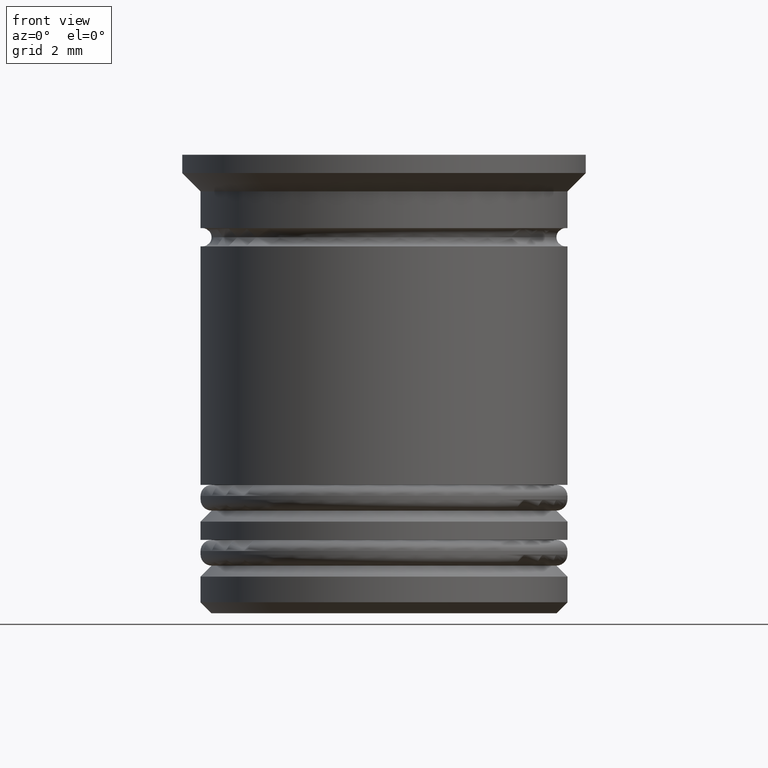
[diagram: clean part render]
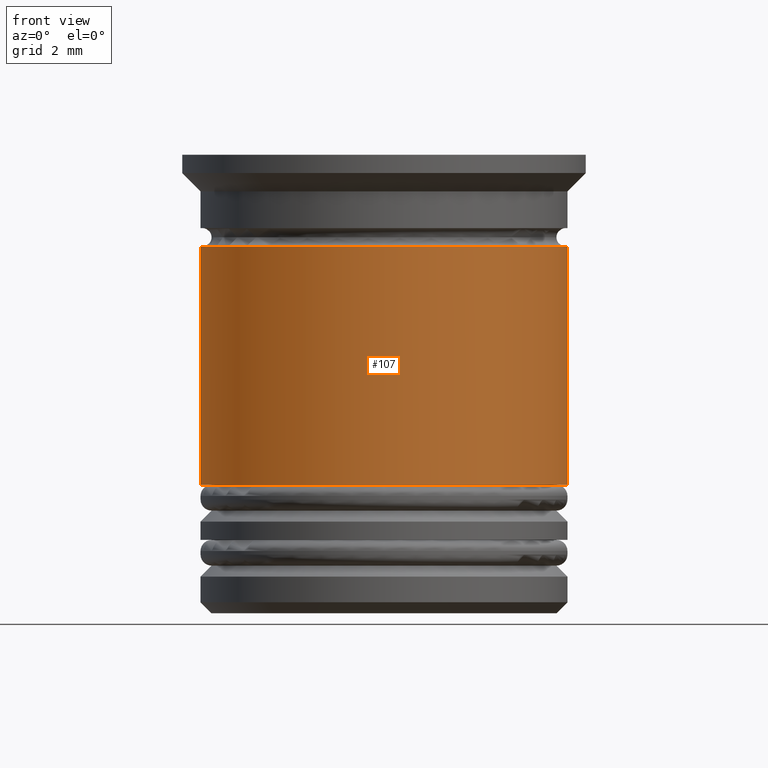
[diagram: same view with one face highlighted and labeled with its STEP entity id]
A machine part, front view. The second image highlights one B-rep face of the part: STEP entity #107.
In plain terms, the highlighted cylindrical surface (partial cylindrical patch) has radius 5 mm, axis along (-0, -0, 1).
Its self-contained STEP definition (entity closure, byte-faithful):
#54 = DIRECTION ( 'NONE',  ( 1.000000000000000000, 0.000000000000000000, 0.000000000000000000 ) ) ;
#59 = EDGE_CURVE ( 'NONE', #1342, #1024, #932, .T. ) ;
#107 = ADVANCED_FACE ( 'NONE', ( #2058 ), #301, .T. ) ;
#162 = CIRCLE ( 'NONE', #1138, 4.999999999999999112 ) ;
#190 = CARTESIAN_POINT ( 'NONE',  ( 0.000000000000000000, 0.000000000000000000, -9.000000000000001776 ) ) ;
#204 = ORIENTED_EDGE ( 'NONE', *, *, #902, .T. ) ;
#237 = DIRECTION ( 'NONE',  ( -0.000000000000000000, -0.000000000000000000, 1.000000000000000000 ) ) ;
#301 = CYLINDRICAL_SURFACE ( 'NONE', #2065, 5.000000000000000000 ) ;
#332 = CARTESIAN_POINT ( 'NONE',  ( 4.999999999999999112, 0.000000000000000000, -2.500000000000000000 ) ) ;
#343 = EDGE_LOOP ( 'NONE', ( #655, #1630, #204, #2069 ) ) ;
#417 = AXIS2_PLACEMENT_3D ( 'NONE', #190, #1124, #54 ) ;
#433 = EDGE_CURVE ( 'NONE', #1342, #485, #448, .T. ) ;
#448 = CIRCLE ( 'NONE', #417, 5.000000000000000888 ) ;
#482 = CARTESIAN_POINT ( 'NONE',  ( -5.000000000000000888, 6.123233995736767268E-16, -9.000000000000001776 ) ) ;
#485 = VERTEX_POINT ( 'NONE', #547 ) ;
#547 = CARTESIAN_POINT ( 'NONE',  ( 5.000000000000000888, 0.000000000000000000, -9.000000000000001776 ) ) ;
#563 = VECTOR ( 'NONE', #1882, 1000.000000000000000 ) ;
#632 = DIRECTION ( 'NONE',  ( 1.000000000000000000, 0.000000000000000000, 0.000000000000000000 ) ) ;
#653 = VERTEX_POINT ( 'NONE', #332 ) ;
#655 = ORIENTED_EDGE ( 'NONE', *, *, #59, .F. ) ;
#778 = DIRECTION ( 'NONE',  ( -0.000000000000000000, -0.000000000000000000, 1.000000000000000000 ) ) ;
#793 = CARTESIAN_POINT ( 'NONE',  ( -5.000000000000000000, 6.123233995736766282E-16, 0.000000000000000000 ) ) ;
#902 = EDGE_CURVE ( 'NONE', #485, #653, #1229, .T. ) ;
#932 = LINE ( 'NONE', #793, #1568 ) ;
#942 = CARTESIAN_POINT ( 'NONE',  ( 0.000000000000000000, 0.000000000000000000, 0.000000000000000000 ) ) ;
#1024 = VERTEX_POINT ( 'NONE', #1940 ) ;
#1033 = CARTESIAN_POINT ( 'NONE',  ( 0.000000000000000000, 0.000000000000000000, -2.500000000000000000 ) ) ;
#1124 = DIRECTION ( 'NONE',  ( -0.000000000000000000, -0.000000000000000000, 1.000000000000000000 ) ) ;
#1138 = AXIS2_PLACEMENT_3D ( 'NONE', #1033, #237, #1692 ) ;
#1229 = LINE ( 'NONE', #1869, #563 ) ;
#1342 = VERTEX_POINT ( 'NONE', #482 ) ;
#1568 = VECTOR ( 'NONE', #1932, 1000.000000000000000 ) ;
#1630 = ORIENTED_EDGE ( 'NONE', *, *, #433, .T. ) ;
#1692 = DIRECTION ( 'NONE',  ( 1.000000000000000000, 0.000000000000000000, 0.000000000000000000 ) ) ;
#1869 = CARTESIAN_POINT ( 'NONE',  ( 5.000000000000000000, 0.000000000000000000, 0.000000000000000000 ) ) ;
#1882 = DIRECTION ( 'NONE',  ( -0.000000000000000000, -0.000000000000000000, 1.000000000000000000 ) ) ;
#1932 = DIRECTION ( 'NONE',  ( -0.000000000000000000, -0.000000000000000000, 1.000000000000000000 ) ) ;
#1940 = CARTESIAN_POINT ( 'NONE',  ( -4.999999999999999112, 6.123233995736766282E-16, -2.500000000000000000 ) ) ;
#2023 = EDGE_CURVE ( 'NONE', #1024, #653, #162, .T. ) ;
#2058 = FACE_OUTER_BOUND ( 'NONE', #343, .T. ) ;
#2065 = AXIS2_PLACEMENT_3D ( 'NONE', #942, #778, #632 ) ;
#2069 = ORIENTED_EDGE ( 'NONE', *, *, #2023, .F. ) ;